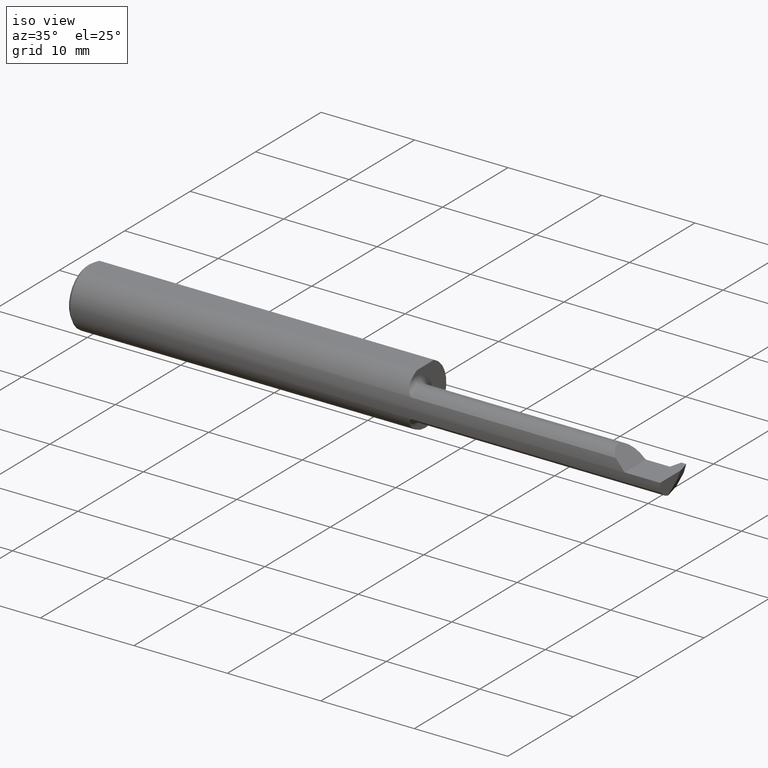
[diagram: clean part render]
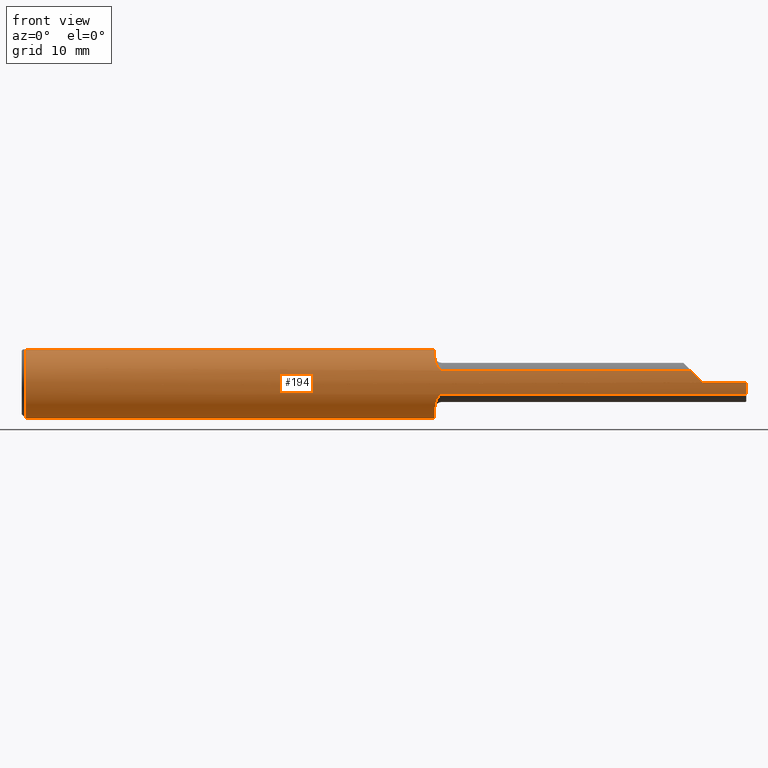
[diagram: tour spotlight — one face highlighted and labeled with its STEP entity id]
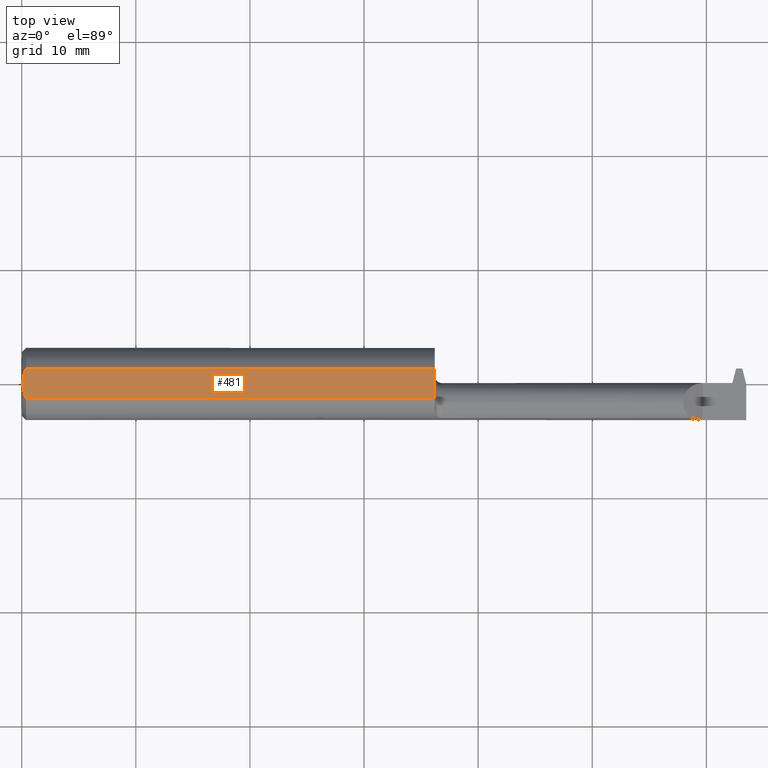
[diagram: tour spotlight — one face highlighted and labeled with its STEP entity id]
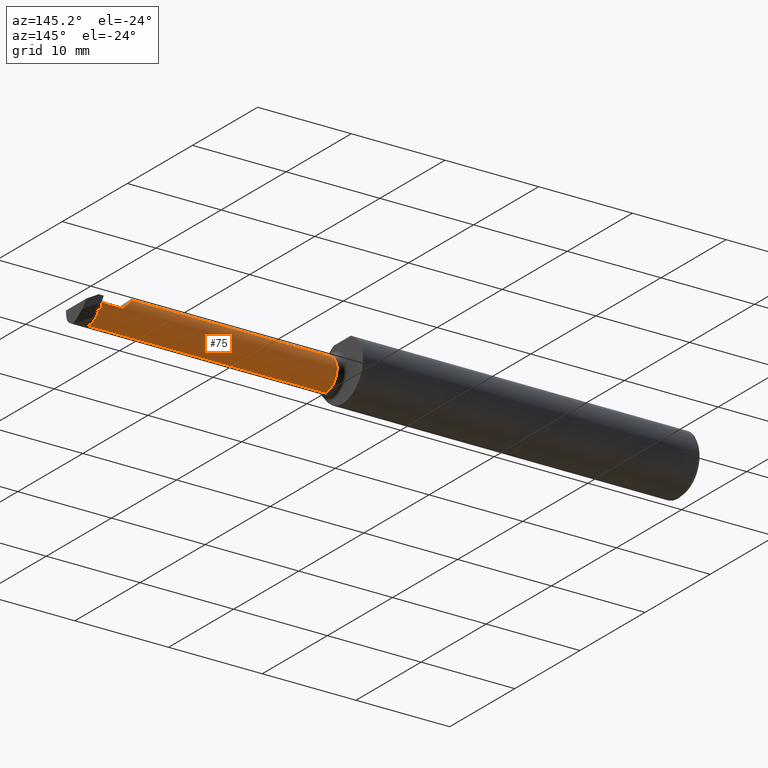
[diagram: tour spotlight — one face highlighted and labeled with its STEP entity id]
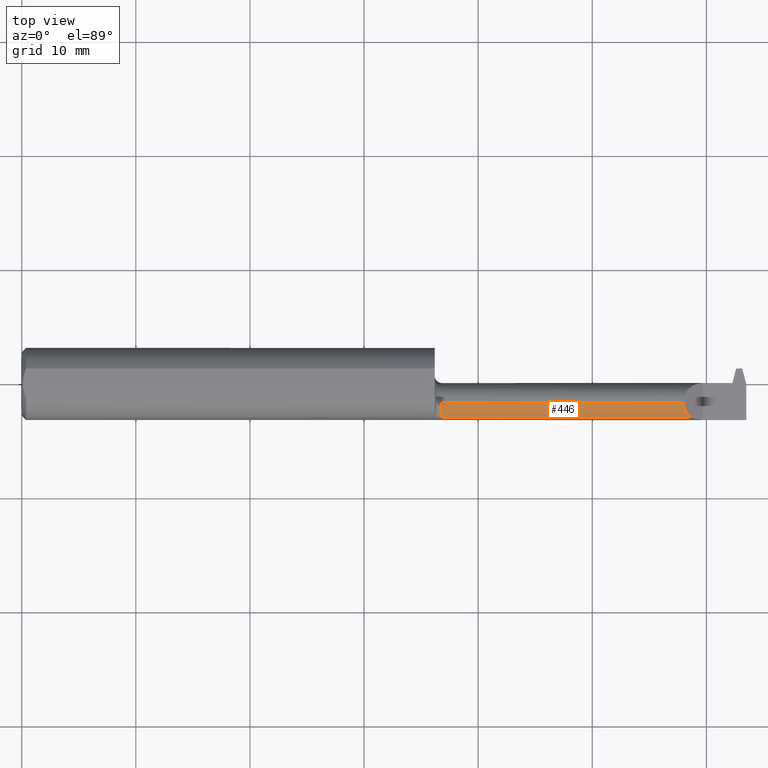
[diagram: tour spotlight — one face highlighted and labeled with its STEP entity id]
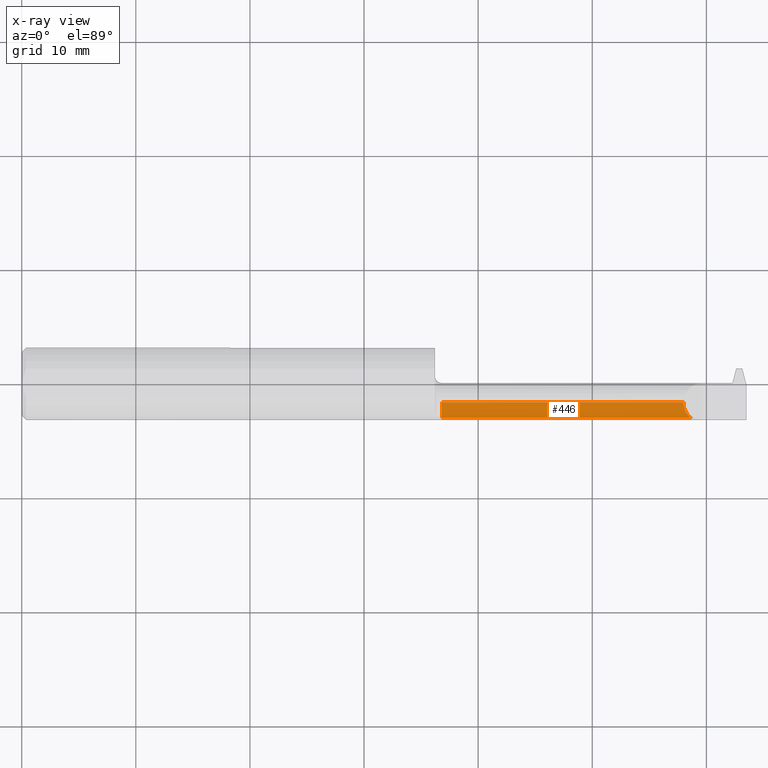
[diagram: x-ray of the same camera — body ghosted, this tour face saturated]
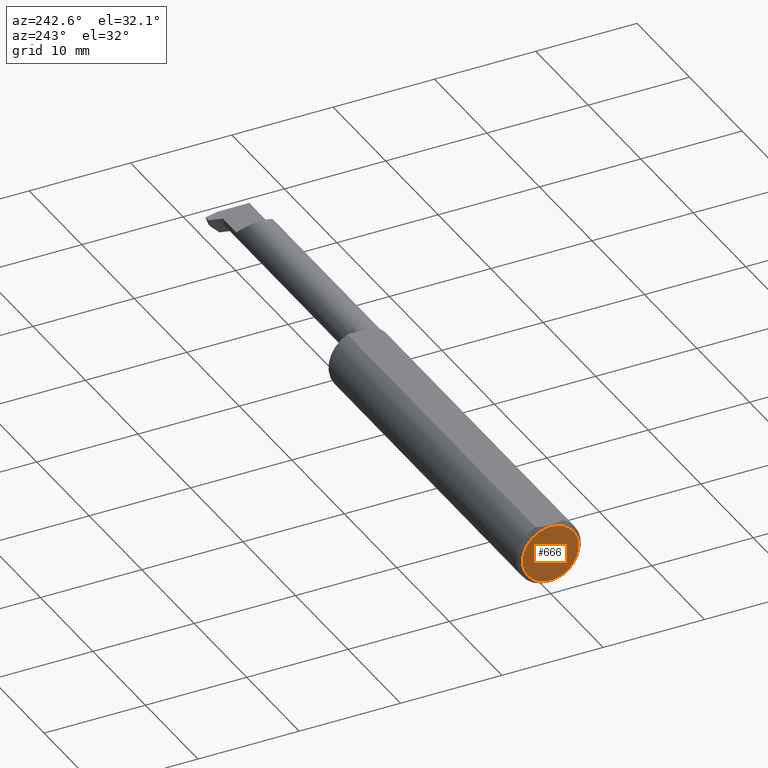
[diagram: tour spotlight — one face highlighted and labeled with its STEP entity id]
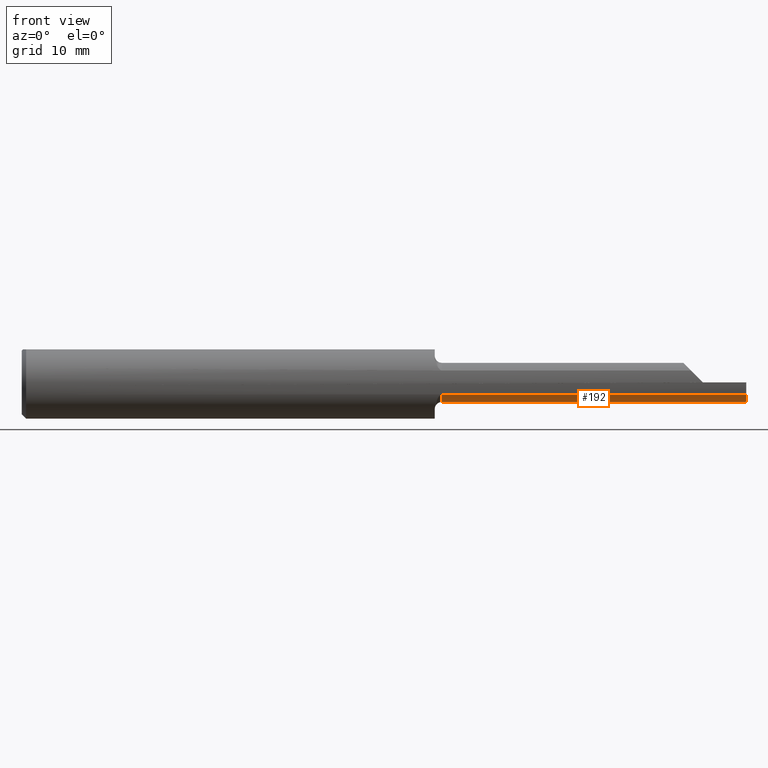
[diagram: tour spotlight — one face highlighted and labeled with its STEP entity id]
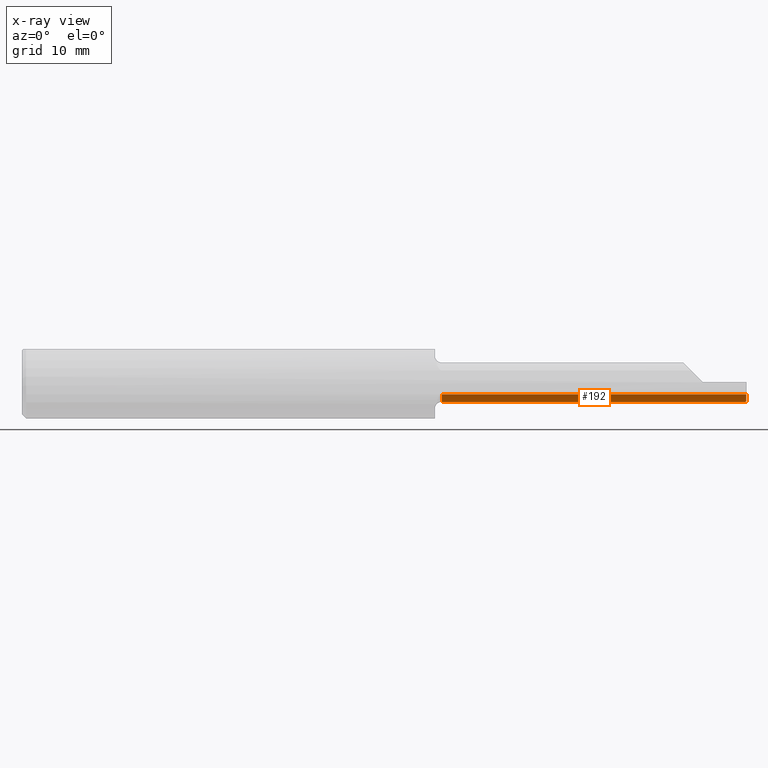
[diagram: x-ray of the same camera — body ghosted, this tour face saturated]
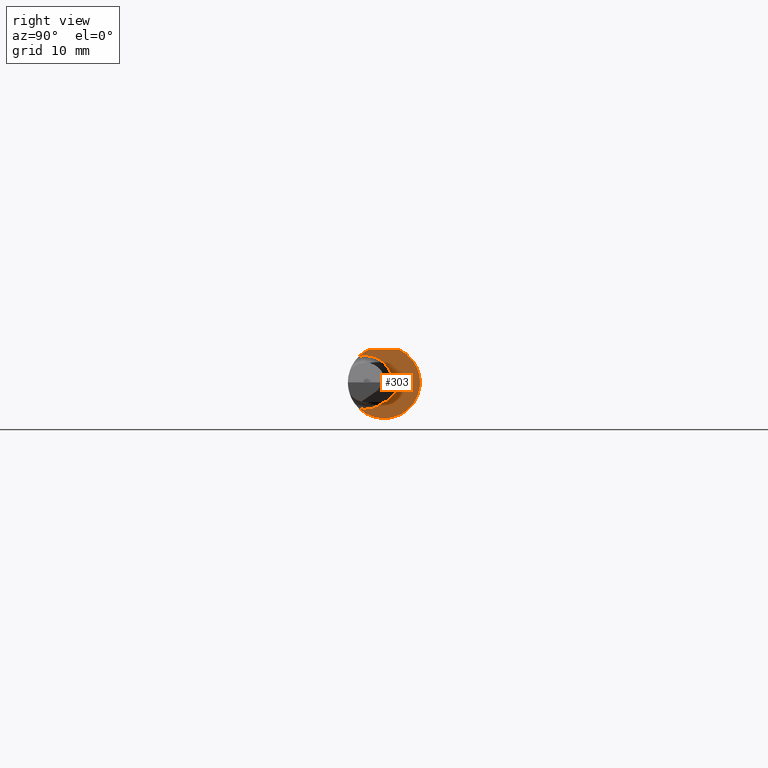
[diagram: tour spotlight — one face highlighted and labeled with its STEP entity id]
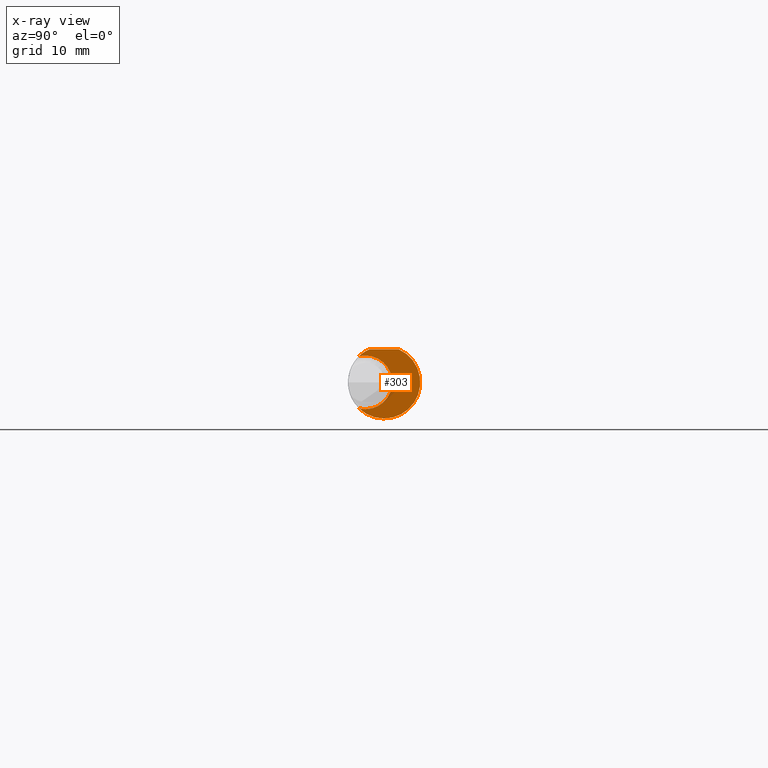
[diagram: x-ray of the same camera — body ghosted, this tour face saturated]
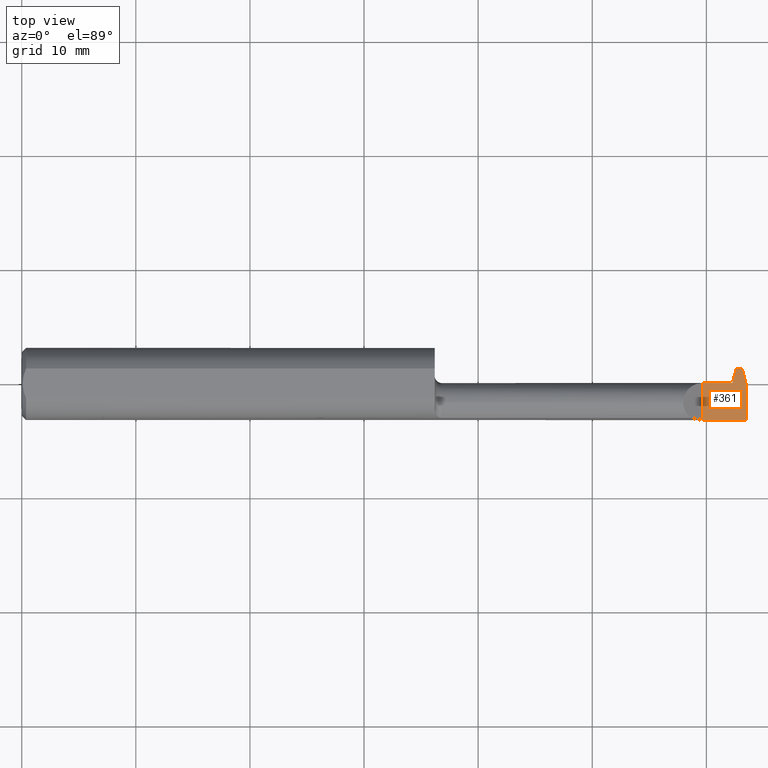
[diagram: tour spotlight — one face highlighted and labeled with its STEP entity id]
A machine part: a face-by-face anatomy tour. The part has 29 B-rep faces; the first image is the clean iso view, then the 8 largest visible faces are spotlighted one at a time (largest first), each with its STEP entity span.

Face 1 — front view, entity #194. In plain terms, the highlighted cylindrical surface (edge-blend (fillet) strip) has radius 3.1712 mm, axis along (-1, -0, -0).
Definition (entity closure, byte-faithful):
#34 = AXIS2_PLACEMENT_3D ( 'NONE', #537, #73, #765 ) ;
#44 = VERTEX_POINT ( 'NONE', #256 ) ;
#62 = B_SPLINE_CURVE_WITH_KNOTS ( 'NONE', 3,
 ( #570, #144, #218, #440, #260, #674, #520, #565, #751, #443, #793, #940 ),
 .UNSPECIFIED., .F., .F.,
 ( 4, 2, 2, 2, 2, 4 ),
 ( 0.000000000000000000, 0.0002139781332481023612, 0.0004279562664962047224, 0.0008559125329924097700, 0.001283868799488614709, 0.001711825065984819974 ),
 .UNSPECIFIED. ) ;
#69 = LINE ( 'NONE', #840, #276 ) ;
#73 = DIRECTION ( 'NONE',  ( -1.000000000000000000, -0.000000000000000000, -0.000000000000000000 ) ) ;
#76 = DIRECTION ( 'NONE',  ( 1.000000000000000000, 0.000000000000000000, 0.000000000000000000 ) ) ;
#77 = CARTESIAN_POINT ( 'NONE',  ( 0.01499999999999970281, 0.05124158467494929065, 0.1138500000000000068 ) ) ;
#87 = LINE ( 'NONE', #622, #811 ) ;
#92 = CARTESIAN_POINT ( 'NONE',  ( 1.428579630862570449, -0.1044777942651883146, -0.06855471305740289123 ) ) ;
#109 = DIRECTION ( 'NONE',  ( 0.000000000000000000, 0.000000000000000000, -1.000000000000000000 ) ) ;
#124 = ORIENTED_EDGE ( 'NONE', *, *, #343, .T. ) ;
#144 = CARTESIAN_POINT ( 'NONE',  ( 1.447138575833329499, -0.1178880730380729991, 0.04110869415792683251 ) ) ;
#152 = EDGE_CURVE ( 'NONE', #268, #44, #62, .T. ) ;
#157 = CARTESIAN_POINT ( 'NONE',  ( 1.425000000000000266, -0.08680804195804191215, -0.08973230383429835200 ) ) ;
#166 = ORIENTED_EDGE ( 'NONE', *, *, #963, .F. ) ;
#170 = CARTESIAN_POINT ( 'NONE',  ( 1.438805720551186385, -0.1151363458569193837, -0.04834088676794719153 ) ) ;
#184 = B_SPLINE_CURVE_WITH_KNOTS ( 'NONE', 3,
 ( #242, #559, #615, #254, #92, #921, #788, #170, #337, #542, #701, #843 ),
 .UNSPECIFIED., .F., .F.,
 ( 4, 2, 2, 2, 2, 4 ),
 ( 0.000000000000000000, 0.0004231261345662541500, 0.0008462522691325083000, 0.001269378403698762396, 0.001480941470981889715, 0.001692504538265017251 ),
 .UNSPECIFIED. ) ;
#185 = CARTESIAN_POINT ( 'NONE',  ( 2.350000000000000089, -0.1248499599519359016, 9.999999999961100661E-05 ) ) ;
#194 = ADVANCED_FACE ( 'NONE', ( #821 ), #422, .T. ) ;
#196 = VERTEX_POINT ( 'NONE', #649 ) ;
#197 = DIRECTION ( 'NONE',  ( 0.000000000000000000, 0.000000000000000000, -1.000000000000000000 ) ) ;
#208 = CARTESIAN_POINT ( 'NONE',  ( 2.350000000000000089, -0.1248499999999999888, -3.367667473011536351E-17 ) ) ;
#211 = EDGE_CURVE ( 'NONE', #804, #308, #985, .T. ) ;
#218 = CARTESIAN_POINT ( 'NONE',  ( 1.444575795023728348, -0.1173638605453972278, 0.04262586039006312916 ) ) ;
#222 = EDGE_CURVE ( 'NONE', #474, #327, #731, .T. ) ;
#223 = DIRECTION ( 'NONE',  ( 0.000000000000000000, 0.000000000000000000, -1.000000000000000000 ) ) ;
#229 = CARTESIAN_POINT ( 'NONE',  ( 2.350000000000000089, -0.1248499599519359016, 9.999999999961100661E-05 ) ) ;
#235 = CARTESIAN_POINT ( 'NONE',  ( 2.500000000000000000, -0.1248499999999999471, -3.367667473011537583E-17 ) ) ;
#241 = VECTOR ( 'NONE', #76, 39.37007874015748143 ) ;
#242 = CARTESIAN_POINT ( 'NONE',  ( 1.425000000000000266, -0.08680804195804191215, -0.08973230383429835200 ) ) ;
#252 = VERTEX_POINT ( 'NONE', #235 ) ;
#254 = CARTESIAN_POINT ( 'NONE',  ( 1.427244443432142962, -0.1013644936721858902, -0.07309500289283984986 ) ) ;
#255 = CIRCLE ( 'NONE', #383, 0.1248500000000000026 ) ;
#256 = CARTESIAN_POINT ( 'NONE',  ( 1.425000000000000266, -0.08680804195804191215, 0.08973230383429835200 ) ) ;
#257 = CIRCLE ( 'NONE', #399, 0.1248500000000000026 ) ;
#260 = CARTESIAN_POINT ( 'NONE',  ( 1.438797751365139321, -0.1151316249329346203, 0.04835186460175136536 ) ) ;
#265 = EDGE_CURVE ( 'NONE', #252, #700, #69, .T. ) ;
#268 = VERTEX_POINT ( 'NONE', #911 ) ;
#276 = VECTOR ( 'NONE', #677, 39.37007874015748143 ) ;
#289 = ORIENTED_EDGE ( 'NONE', *, *, #355, .F. ) ;
#297 = LINE ( 'NONE', #611, #241 ) ;
#308 = VERTEX_POINT ( 'NONE', #77 ) ;
#327 = VERTEX_POINT ( 'NONE', #609 ) ;
#335 = AXIS2_PLACEMENT_3D ( 'NONE', #632, #934, #483 ) ;
#337 = CARTESIAN_POINT ( 'NONE',  ( 1.440487603854009313, -0.1159976367288706595, -0.04621409347929126415 ) ) ;
#339 = AXIS2_PLACEMENT_3D ( 'NONE', #418, #802, #866 ) ;
#343 = EDGE_CURVE ( 'NONE', #700, #871, #620, .T. ) ;
#350 = CARTESIAN_POINT ( 'NONE',  ( 2.500000000000000000, -0.05124158467494929065, 0.1138500000000000068 ) ) ;
#355 = EDGE_CURVE ( 'NONE', #787, #556, #257, .T. ) ;
#370 = CIRCLE ( 'NONE', #922, 0.1248500000000000026 ) ;
#376 = CARTESIAN_POINT ( 'NONE',  ( 1.425000000000000266, 0.000000000000000000, 0.000000000000000000 ) ) ;
#383 = AXIS2_PLACEMENT_3D ( 'NONE', #892, #595, #197 ) ;
#393 = ORIENTED_EDGE ( 'NONE', *, *, #937, .T. ) ;
#399 = AXIS2_PLACEMENT_3D ( 'NONE', #376, #982, #915 ) ;
#418 = CARTESIAN_POINT ( 'NONE',  ( 2.500000000000000000, 0.000000000000000000, 0.000000000000000000 ) ) ;
#422 = CYLINDRICAL_SURFACE ( 'NONE', #339, 0.1248500000000000026 ) ;
#427 = ORIENTED_EDGE ( 'NONE', *, *, #862, .T. ) ;
#440 = CARTESIAN_POINT ( 'NONE',  ( 1.440471370292704556, -0.1159916994806585028, 0.04622948612845707850 ) ) ;
#443 = CARTESIAN_POINT ( 'NONE',  ( 1.425472843869164841, -0.09461185655952933371, 0.08164619401006140142 ) ) ;
#457 = CARTESIAN_POINT ( 'NONE',  ( 0.01499999999999970281, 0.000000000000000000, -0.1248500000000000026 ) ) ;
#471 = LINE ( 'NONE', #873, #968 ) ;
#474 = VERTEX_POINT ( 'NONE', #786 ) ;
#483 = DIRECTION ( 'NONE',  ( 0.000000000000000000, 0.000000000000000000, -1.000000000000000000 ) ) ;
#487 = DIRECTION ( 'NONE',  ( 1.000000000000000000, -0.000000000000000000, -0.000000000000000000 ) ) ;
#504 = CARTESIAN_POINT ( 'NONE',  ( 1.450000000000000178, -0.1178880730380729852, -0.04110869415792685333 ) ) ;
#520 = CARTESIAN_POINT ( 'NONE',  ( 1.432148820116563304, -0.1099047179638918265, 0.05947070158462895717 ) ) ;
#523 = CARTESIAN_POINT ( 'NONE',  ( 2.336004490154644841, -0.1248387500886322388, 0.01409550984535482172 ) ) ;
#525 = VECTOR ( 'NONE', #643, 39.37007874015748143 ) ;
#532 = CARTESIAN_POINT ( 'NONE',  ( 2.322206397681024992, -0.1224963014591190363, 0.02789360231897465570 ) ) ;
#537 = CARTESIAN_POINT ( 'NONE',  ( 2.350000000000000089, 0.000000000000000000, 0.000000000000000000 ) ) ;
#542 = CARTESIAN_POINT ( 'NONE',  ( 1.444569448206967976, -0.1173612273236402659, -0.04263257538414207820 ) ) ;
#556 = VERTEX_POINT ( 'NONE', #664 ) ;
#559 = CARTESIAN_POINT ( 'NONE',  ( 1.425000000000000488, -0.09084981605085465373, -0.08582224602856410034 ) ) ;
#565 = CARTESIAN_POINT ( 'NONE',  ( 1.428561661930270343, -0.1044486834845270024, 0.06860236071768735511 ) ) ;
#570 = CARTESIAN_POINT ( 'NONE',  ( 1.450000000000000178, -0.1178880730380729852, 0.04110869415792685333 ) ) ;
#572 = ORIENTED_EDGE ( 'NONE', *, *, #610, .F. ) ;
#583 = DIRECTION ( 'NONE',  ( 1.000000000000000000, 0.000000000000000000, 0.000000000000000000 ) ) ;
#595 = DIRECTION ( 'NONE',  ( 1.000000000000000000, 0.000000000000000000, 0.000000000000000000 ) ) ;
#601 = CIRCLE ( 'NONE', #335, 0.1248500000000000026 ) ;
#609 = CARTESIAN_POINT ( 'NONE',  ( 0.01499999999999969413, -0.05124158467494929065, 0.1138500000000000068 ) ) ;
#610 = EDGE_CURVE ( 'NONE', #474, #44, #255, .T. ) ;
#611 = CARTESIAN_POINT ( 'NONE',  ( 1.937500000000000222, -0.1178880730380729852, 0.04110869415792685333 ) ) ;
#615 = CARTESIAN_POINT ( 'NONE',  ( 1.425463484348167276, -0.09455996579217590403, -0.08170711654871570806 ) ) ;
#619 = EDGE_LOOP ( 'NONE', ( #166, #648, #986, #124, #720, #946, #883, #572, #698, #393, #713, #981, #289, #427 ) ) ;
#620 = CIRCLE ( 'NONE', #34, 0.1248500000000000026 ) ;
#622 = CARTESIAN_POINT ( 'NONE',  ( 1.937500000000000222, -0.1178880730380729852, -0.04110869415792685333 ) ) ;
#632 = CARTESIAN_POINT ( 'NONE',  ( 0.01499999999999970281, 0.000000000000000000, 0.000000000000000000 ) ) ;
#643 = DIRECTION ( 'NONE',  ( -1.000000000000000000, -0.000000000000000000, -0.000000000000000000 ) ) ;
#648 = ORIENTED_EDGE ( 'NONE', *, *, #783, .F. ) ;
#649 = CARTESIAN_POINT ( 'NONE',  ( 2.308991305842072794, -0.1178880730380730268, 0.04110869415792675619 ) ) ;
#664 = CARTESIAN_POINT ( 'NONE',  ( 1.425000000000000266, 0.05124158467494929065, 0.1138500000000000068 ) ) ;
#674 = CARTESIAN_POINT ( 'NONE',  ( 1.434345155916293413, -0.1122401308722703883, 0.05488497975249280458 ) ) ;
#675 = CARTESIAN_POINT ( 'NONE',  ( 2.308991305842072794, -0.1178880730380730268, 0.04110869415792675619 ) ) ;
#677 = DIRECTION ( 'NONE',  ( -1.000000000000000000, -0.000000000000000000, -0.000000000000000000 ) ) ;
#698 = ORIENTED_EDGE ( 'NONE', *, *, #222, .T. ) ;
#700 = VERTEX_POINT ( 'NONE', #208 ) ;
#701 = CARTESIAN_POINT ( 'NONE',  ( 1.447146851094465836, -0.1178880730380730130, -0.04110869415792674925 ) ) ;
#705 = AXIS2_PLACEMENT_3D ( 'NONE', #949, #487, #109 ) ;
#708 = VERTEX_POINT ( 'NONE', #504 ) ;
#709 = EDGE_CURVE ( 'NONE', #871, #196, #916, .T. ) ;
#713 = ORIENTED_EDGE ( 'NONE', *, *, #211, .T. ) ;
#720 = ORIENTED_EDGE ( 'NONE', *, *, #709, .T. ) ;
#731 = LINE ( 'NONE', #350, #525 ) ;
#737 = VERTEX_POINT ( 'NONE', #761 ) ;
#751 = CARTESIAN_POINT ( 'NONE',  ( 1.427257066675623021, -0.1013963922970315401, 0.07304981880275966677 ) ) ;
#752 = EDGE_CURVE ( 'NONE', #268, #196, #297, .T. ) ;
#761 = CARTESIAN_POINT ( 'NONE',  ( 2.500000000000000000, -0.1178880730380729852, -0.04110869415792685333 ) ) ;
#765 = DIRECTION ( 'NONE',  ( 0.000000000000000000, 0.000000000000000000, 1.000000000000000000 ) ) ;
#783 = EDGE_CURVE ( 'NONE', #252, #737, #370, .T. ) ;
#786 = CARTESIAN_POINT ( 'NONE',  ( 1.425000000000000266, -0.05124158467494927677, 0.1138500000000000068 ) ) ;
#787 = VERTEX_POINT ( 'NONE', #157 ) ;
#788 = CARTESIAN_POINT ( 'NONE',  ( 1.434341522824309489, -0.1122386781385961430, -0.05488888332692708205 ) ) ;
#793 = CARTESIAN_POINT ( 'NONE',  ( 1.425000000000000711, -0.09084801577314524645, 0.08582398763750828663 ) ) ;
#802 = DIRECTION ( 'NONE',  ( -1.000000000000000000, -0.000000000000000000, -0.000000000000000000 ) ) ;
#804 = VERTEX_POINT ( 'NONE', #457 ) ;
#811 = VECTOR ( 'NONE', #928, 39.37007874015748143 ) ;
#821 = FACE_OUTER_BOUND ( 'NONE', #619, .T. ) ;
#840 = CARTESIAN_POINT ( 'NONE',  ( 2.500000000000000000, -0.1248500000000000026, -3.367667473011537583E-17 ) ) ;
#843 = CARTESIAN_POINT ( 'NONE',  ( 1.450000000000000178, -0.1178880730380729852, -0.04110869415792685333 ) ) ;
#862 = EDGE_CURVE ( 'NONE', #787, #708, #184, .T. ) ;
#866 = DIRECTION ( 'NONE',  ( 0.000000000000000000, 0.000000000000000000, 1.000000000000000000 ) ) ;
#871 = VERTEX_POINT ( 'NONE', #185 ) ;
#873 = CARTESIAN_POINT ( 'NONE',  ( 2.500000000000000000, 0.05124158467494929065, 0.1138500000000000068 ) ) ;
#883 = ORIENTED_EDGE ( 'NONE', *, *, #152, .T. ) ;
#892 = CARTESIAN_POINT ( 'NONE',  ( 1.425000000000000266, 0.000000000000000000, 0.000000000000000000 ) ) ;
#903 = CARTESIAN_POINT ( 'NONE',  ( 2.500000000000000000, 0.000000000000000000, 0.000000000000000000 ) ) ;
#911 = CARTESIAN_POINT ( 'NONE',  ( 1.450000000000000178, -0.1178880730380729852, 0.04110869415792685333 ) ) ;
#915 = DIRECTION ( 'NONE',  ( 0.000000000000000000, 0.000000000000000000, -1.000000000000000000 ) ) ;
#916 =( BOUNDED_CURVE ( )  B_SPLINE_CURVE ( 3, ( #229, #523, #532, #675 ),
 .UNSPECIFIED., .F., .T. ) 
 B_SPLINE_CURVE_WITH_KNOTS ( ( 4, 4 ),
 ( 4.713189941623711299, 5.047913695406924361 ),
 .UNSPECIFIED. ) 
 CURVE ( )  GEOMETRIC_REPRESENTATION_ITEM ( )  RATIONAL_B_SPLINE_CURVE ( ( 1.000000000000000000, 0.9906851070496518474, 0.9906851070496518474, 1.000000000000000000 ) ) 
 REPRESENTATION_ITEM ( '' )  );
#921 = CARTESIAN_POINT ( 'NONE',  ( 1.432139659934243969, -0.1098890007994705875, -0.05949592994647465855 ) ) ;
#922 = AXIS2_PLACEMENT_3D ( 'NONE', #903, #976, #223 ) ;
#928 = DIRECTION ( 'NONE',  ( -1.000000000000000000, -0.000000000000000000, -0.000000000000000000 ) ) ;
#934 = DIRECTION ( 'NONE',  ( 1.000000000000000000, -0.000000000000000000, -0.000000000000000000 ) ) ;
#937 = EDGE_CURVE ( 'NONE', #327, #804, #601, .T. ) ;
#940 = CARTESIAN_POINT ( 'NONE',  ( 1.425000000000000266, -0.08680804195804191215, 0.08973230383429835200 ) ) ;
#946 = ORIENTED_EDGE ( 'NONE', *, *, #752, .F. ) ;
#949 = CARTESIAN_POINT ( 'NONE',  ( 0.01499999999999970281, 0.000000000000000000, 0.000000000000000000 ) ) ;
#963 = EDGE_CURVE ( 'NONE', #737, #708, #87, .T. ) ;
#968 = VECTOR ( 'NONE', #583, 39.37007874015748143 ) ;
#976 = DIRECTION ( 'NONE',  ( 1.000000000000000000, 0.000000000000000000, 0.000000000000000000 ) ) ;
#977 = EDGE_CURVE ( 'NONE', #308, #556, #471, .T. ) ;
#981 = ORIENTED_EDGE ( 'NONE', *, *, #977, .T. ) ;
#982 = DIRECTION ( 'NONE',  ( 1.000000000000000000, 0.000000000000000000, 0.000000000000000000 ) ) ;
#985 = CIRCLE ( 'NONE', #705, 0.1248500000000000026 ) ;
#986 = ORIENTED_EDGE ( 'NONE', *, *, #265, .T. ) ;

Face 2 — top view, entity #481. In plain terms, the highlighted planar face has unit normal (-0, 0, -1).
Definition (entity closure, byte-faithful):
#10 = ORIENTED_EDGE ( 'NONE', *, *, #900, .F. ) ;
#15 = CARTESIAN_POINT ( 'NONE',  ( 0.003999999999982594735, -1.276290005483319770E-15, 0.1138500000000000068 ) ) ;
#77 = CARTESIAN_POINT ( 'NONE',  ( 0.01499999999999970281, 0.05124158467494929065, 0.1138500000000000068 ) ) ;
#83 = CARTESIAN_POINT ( 'NONE',  ( 0.003999999999999733803, 0.008800694614867364887, 0.1138500000000000068 ) ) ;
#84 = ORIENTED_EDGE ( 'NONE', *, *, #977, .F. ) ;
#99 = DIRECTION ( 'NONE',  ( 0.000000000000000000, -1.000000000000000000, 0.000000000000000000 ) ) ;
#102 = CARTESIAN_POINT ( 'NONE',  ( 0.005080301127456087092, -0.01778481300359936387, 0.1138500000000000206 ) ) ;
#148 = CARTESIAN_POINT ( 'NONE',  ( 0.005030588787081553478, 0.01748826716933455164, 0.1138499999999999790 ) ) ;
#164 = CARTESIAN_POINT ( 'NONE',  ( 0.01499999999999970281, 0.05124158467494929065, 0.1138500000000000068 ) ) ;
#191 = CARTESIAN_POINT ( 'NONE',  ( 0.003999999999982594735, -1.276290005483319770E-15, 0.1138500000000000068 ) ) ;
#222 = EDGE_CURVE ( 'NONE', #474, #327, #731, .T. ) ;
#237 = CARTESIAN_POINT ( 'NONE',  ( 0.01167190377471843954, 0.04313268608482607319, 0.1138500000000000068 ) ) ;
#246 = ORIENTED_EDGE ( 'NONE', *, *, #429, .T. ) ;
#258 = FACE_OUTER_BOUND ( 'NONE', #284, .T. ) ;
#284 = EDGE_LOOP ( 'NONE', ( #10, #84, #926, #246, #660 ) ) ;
#308 = VERTEX_POINT ( 'NONE', #77 ) ;
#327 = VERTEX_POINT ( 'NONE', #609 ) ;
#330 = CARTESIAN_POINT ( 'NONE',  ( 0.008925039223039965899, -0.03485448893270377130, 0.1138499999999999790 ) ) ;
#350 = CARTESIAN_POINT ( 'NONE',  ( 2.500000000000000000, -0.05124158467494929065, 0.1138500000000000068 ) ) ;
#407 = PLANE ( 'NONE',  #513 ) ;
#429 = EDGE_CURVE ( 'NONE', #502, #327, #450, .T. ) ;
#450 = B_SPLINE_CURVE_WITH_KNOTS ( 'NONE', 3,
 ( #191, #865, #102, #330, #727, #851 ),
 .UNSPECIFIED., .F., .F.,
 ( 4, 2, 4 ),
 ( 0.002543458196361374386, 0.003213918189955199643, 0.003884378183549024900 ),
 .UNSPECIFIED. ) ;
#463 = CARTESIAN_POINT ( 'NONE',  ( 0.008866562462787448695, 0.03466860267591459488, 0.1138500000000000206 ) ) ;
#471 = LINE ( 'NONE', #873, #968 ) ;
#474 = VERTEX_POINT ( 'NONE', #786 ) ;
#481 = ADVANCED_FACE ( 'NONE', ( #258 ), #407, .F. ) ;
#502 = VERTEX_POINT ( 'NONE', #15 ) ;
#513 = AXIS2_PLACEMENT_3D ( 'NONE', #562, #625, #703 ) ;
#525 = VECTOR ( 'NONE', #643, 39.37007874015748143 ) ;
#556 = VERTEX_POINT ( 'NONE', #664 ) ;
#562 = CARTESIAN_POINT ( 'NONE',  ( 0.000000000000000000, 0.1000000000000000056, 0.1138500000000000068 ) ) ;
#583 = DIRECTION ( 'NONE',  ( 1.000000000000000000, 0.000000000000000000, 0.000000000000000000 ) ) ;
#587 = B_SPLINE_CURVE_WITH_KNOTS ( 'NONE', 3,
 ( #164, #237, #463, #148, #83, #680 ),
 .UNSPECIFIED., .F., .F.,
 ( 4, 2, 4 ),
 ( 0.001209797888329797611, 0.001876628042345585999, 0.002543458196361374386 ),
 .UNSPECIFIED. ) ;
#609 = CARTESIAN_POINT ( 'NONE',  ( 0.01499999999999969413, -0.05124158467494929065, 0.1138500000000000068 ) ) ;
#625 = DIRECTION ( 'NONE',  ( -0.000000000000000000, 0.000000000000000000, -1.000000000000000000 ) ) ;
#643 = DIRECTION ( 'NONE',  ( -1.000000000000000000, -0.000000000000000000, -0.000000000000000000 ) ) ;
#660 = ORIENTED_EDGE ( 'NONE', *, *, #222, .F. ) ;
#664 = CARTESIAN_POINT ( 'NONE',  ( 1.425000000000000266, 0.05124158467494929065, 0.1138500000000000068 ) ) ;
#680 = CARTESIAN_POINT ( 'NONE',  ( 0.003999999999982594735, -1.276290005483319770E-15, 0.1138500000000000068 ) ) ;
#703 = DIRECTION ( 'NONE',  ( -1.000000000000000000, 0.000000000000000000, 0.000000000000000000 ) ) ;
#727 = CARTESIAN_POINT ( 'NONE',  ( 0.01167347033176715718, -0.04313650299737421812, 0.1138500000000000068 ) ) ;
#731 = LINE ( 'NONE', #350, #525 ) ;
#786 = CARTESIAN_POINT ( 'NONE',  ( 1.425000000000000266, -0.05124158467494927677, 0.1138500000000000068 ) ) ;
#794 = LINE ( 'NONE', #931, #970 ) ;
#822 = EDGE_CURVE ( 'NONE', #308, #502, #587, .T. ) ;
#851 = CARTESIAN_POINT ( 'NONE',  ( 0.01499999999999969413, -0.05124158467494929065, 0.1138500000000000068 ) ) ;
#865 = CARTESIAN_POINT ( 'NONE',  ( 0.004000000000000225597, -0.008848600531297691474, 0.1138500000000000068 ) ) ;
#873 = CARTESIAN_POINT ( 'NONE',  ( 2.500000000000000000, 0.05124158467494929065, 0.1138500000000000068 ) ) ;
#900 = EDGE_CURVE ( 'NONE', #556, #474, #794, .T. ) ;
#926 = ORIENTED_EDGE ( 'NONE', *, *, #822, .T. ) ;
#931 = CARTESIAN_POINT ( 'NONE',  ( 1.425000000000000266, 0.1000000000000000056, 0.1138500000000000068 ) ) ;
#968 = VECTOR ( 'NONE', #583, 39.37007874015748143 ) ;
#970 = VECTOR ( 'NONE', #99, 39.37007874015748143 ) ;
#977 = EDGE_CURVE ( 'NONE', #308, #556, #471, .T. ) ;

Face 3 — auxiliary view, entity #75. In plain terms, the highlighted cylindrical surface (edge-blend (fillet) strip) has radius 1.7145 mm, axis along (-1, -0, -0).
Definition (entity closure, byte-faithful):
#8 = EDGE_CURVE ( 'NONE', #718, #777, #657, .T. ) ;
#14 = VERTEX_POINT ( 'NONE', #329 ) ;
#16 = CIRCLE ( 'NONE', #580, 0.06750000000000001832 ) ;
#21 = EDGE_CURVE ( 'NONE', #362, #149, #633, .T. ) ;
#30 = VECTOR ( 'NONE', #849, 39.37007874015748143 ) ;
#31 = CIRCLE ( 'NONE', #591, 0.06750000000000001832 ) ;
#40 = CARTESIAN_POINT ( 'NONE',  ( 2.350000000000000089, 0.003149925925885245243, 9.999999999961100661E-05 ) ) ;
#42 = ORIENTED_EDGE ( 'NONE', *, *, #129, .T. ) ;
#51 = VECTOR ( 'NONE', #186, 39.37007874015748143 ) ;
#59 = CARTESIAN_POINT ( 'NONE',  ( 1.425000000000000266, -0.06435000000000003217, 0.06750000000000001832 ) ) ;
#65 = CARTESIAN_POINT ( 'NONE',  ( 2.310505889776659494, 0.003091416068753647349, 0.03959411022334007740 ) ) ;
#66 = VECTOR ( 'NONE', #607, 39.37007874015748143 ) ;
#68 = CARTESIAN_POINT ( 'NONE',  ( 2.446947195464070024, -0.004283243744551786490, -0.03079342126085652526 ) ) ;
#72 = ORIENTED_EDGE ( 'NONE', *, *, #679, .T. ) ;
#75 = ADVANCED_FACE ( 'NONE', ( #282 ), #435, .T. ) ;
#91 = EDGE_CURVE ( 'NONE', #957, #149, #819, .T. ) ;
#97 = EDGE_CURVE ( 'NONE', #842, #14, #16, .T. ) ;
#101 = EDGE_CURVE ( 'NONE', #792, #14, #134, .T. ) ;
#103 = ORIENTED_EDGE ( 'NONE', *, *, #97, .T. ) ;
#115 = AXIS2_PLACEMENT_3D ( 'NONE', #826, #965, #745 ) ;
#119 = EDGE_CURVE ( 'NONE', #584, #718, #526, .T. ) ;
#125 = DIRECTION ( 'NONE',  ( -1.000000000000000000, -0.000000000000000000, -0.000000000000000000 ) ) ;
#128 = CARTESIAN_POINT ( 'NONE',  ( 2.436366871395940326, -0.002552249386265832611, -0.02715304806246835595 ) ) ;
#129 = EDGE_CURVE ( 'NONE', #777, #424, #227, .T. ) ;
#132 = VECTOR ( 'NONE', #207, 39.37007874015748143 ) ;
#134 = LINE ( 'NONE', #59, #147 ) ;
#143 = CARTESIAN_POINT ( 'NONE',  ( 2.282599999999999962, -0.06435000000000003217, 0.06750000000000001832 ) ) ;
#145 = EDGE_CURVE ( 'NONE', #770, #792, #958, .T. ) ;
#147 = VECTOR ( 'NONE', #364, 39.37007874015748143 ) ;
#149 = VERTEX_POINT ( 'NONE', #498 ) ;
#155 = DIRECTION ( 'NONE',  ( 1.000000000000000000, 0.000000000000000000, 0.000000000000000000 ) ) ;
#160 = CARTESIAN_POINT ( 'NONE',  ( 2.350000000000000089, 0.003149999999999971833, -3.367667473011536351E-17 ) ) ;
#163 = VECTOR ( 'NONE', #712, 39.37007874015748143 ) ;
#177 = ORIENTED_EDGE ( 'NONE', *, *, #101, .F. ) ;
#186 = DIRECTION ( 'NONE',  ( 1.000000000000000000, 0.000000000000000000, 0.000000000000000000 ) ) ;
#207 = DIRECTION ( 'NONE',  ( -1.000000000000000000, -0.000000000000000000, -0.000000000000000000 ) ) ;
#227 = CIRCLE ( 'NONE', #115, 0.06750000000000001832 ) ;
#231 = CARTESIAN_POINT ( 'NONE',  ( 1.425000000000000266, -0.06435000000000003217, 0.000000000000000000 ) ) ;
#247 = LINE ( 'NONE', #547, #30 ) ;
#273 = AXIS2_PLACEMENT_3D ( 'NONE', #805, #125, #425 ) ;
#279 = DIRECTION ( 'NONE',  ( 0.000000000000000000, 0.000000000000000000, 1.000000000000000000 ) ) ;
#282 = FACE_OUTER_BOUND ( 'NONE', #653, .T. ) ;
#299 = CARTESIAN_POINT ( 'NONE',  ( 2.450000000000000178, -0.004283243744551730979, -0.03079342126085642811 ) ) ;
#304 = LINE ( 'NONE', #693, #66 ) ;
#316 = CARTESIAN_POINT ( 'NONE',  ( 2.436366871395940326, -0.002552249386265832611, -0.02715304806246835595 ) ) ;
#329 = CARTESIAN_POINT ( 'NONE',  ( 1.450000000000000178, -0.06435000000000003217, 0.06750000000000001832 ) ) ;
#348 = DIRECTION ( 'NONE',  ( -1.000000000000000000, -0.000000000000000000, -0.000000000000000000 ) ) ;
#362 = VERTEX_POINT ( 'NONE', #160 ) ;
#364 = DIRECTION ( 'NONE',  ( -1.000000000000000000, -0.000000000000000000, -0.000000000000000000 ) ) ;
#372 = CARTESIAN_POINT ( 'NONE',  ( 1.450000000000000178, -0.06435000000000003217, -0.06750000000000001832 ) ) ;
#413 = CARTESIAN_POINT ( 'NONE',  ( 2.282599999999999962, -0.02485584643600085783, 0.06749999999999999056 ) ) ;
#424 = VERTEX_POINT ( 'NONE', #773 ) ;
#425 = DIRECTION ( 'NONE',  ( 0.000000000000000000, 0.000000000000000000, 1.000000000000000000 ) ) ;
#435 = CYLINDRICAL_SURFACE ( 'NONE', #861, 0.06750000000000001832 ) ;
#439 = ORIENTED_EDGE ( 'NONE', *, *, #8, .T. ) ;
#444 = AXIS2_PLACEMENT_3D ( 'NONE', #830, #508, #813 ) ;
#498 = CARTESIAN_POINT ( 'NONE',  ( 2.442069120782206060, 0.003149999999999970966, 0.000000000000000000 ) ) ;
#508 = DIRECTION ( 'NONE',  ( -1.000000000000000000, -0.000000000000000000, -0.000000000000000000 ) ) ;
#517 = CARTESIAN_POINT ( 'NONE',  ( 1.450000000000000178, -0.06435000000000003217, 0.000000000000000000 ) ) ;
#526 = CIRCLE ( 'NONE', #444, 0.06750000000000001832 ) ;
#528 = CARTESIAN_POINT ( 'NONE',  ( 2.350000000000000089, 0.003149925925885245243, 9.999999999961100661E-05 ) ) ;
#533 = ORIENTED_EDGE ( 'NONE', *, *, #869, .T. ) ;
#536 = VERTEX_POINT ( 'NONE', #943 ) ;
#543 = VERTEX_POINT ( 'NONE', #870 ) ;
#547 = CARTESIAN_POINT ( 'NONE',  ( 1.425000000000000266, -0.002552249386266026467, -0.02715304806246876881 ) ) ;
#580 = AXIS2_PLACEMENT_3D ( 'NONE', #517, #155, #896 ) ;
#582 = ORIENTED_EDGE ( 'NONE', *, *, #647, .T. ) ;
#584 = VERTEX_POINT ( 'NONE', #973 ) ;
#591 = AXIS2_PLACEMENT_3D ( 'NONE', #816, #348, #279 ) ;
#606 = CARTESIAN_POINT ( 'NONE',  ( 2.438170679457906775, 0.001221809097012113753, -0.01856365049595230798 ) ) ;
#607 = DIRECTION ( 'NONE',  ( 1.000000000000000000, 0.000000000000000000, 0.000000000000000000 ) ) ;
#627 = CARTESIAN_POINT ( 'NONE',  ( 1.425000000000000266, -0.06435000000000003217, -0.06750000000000001832 ) ) ;
#628 = ORIENTED_EDGE ( 'NONE', *, *, #119, .T. ) ;
#633 = LINE ( 'NONE', #795, #51 ) ;
#637 = CARTESIAN_POINT ( 'NONE',  ( 2.282599999999999962, -0.06435000000000003217, 0.06750000000000001832 ) ) ;
#640 = ORIENTED_EDGE ( 'NONE', *, *, #145, .F. ) ;
#647 = EDGE_CURVE ( 'NONE', #536, #543, #31, .T. ) ;
#653 = EDGE_LOOP ( 'NONE', ( #582, #533, #103, #177, #640, #72, #950, #764, #685, #628, #439, #42, #846 ) ) ;
#657 = LINE ( 'NONE', #887, #132 ) ;
#663 = DIRECTION ( 'NONE',  ( -1.000000000000000000, -0.000000000000000000, -0.000000000000000000 ) ) ;
#679 = EDGE_CURVE ( 'NONE', #770, #362, #721, .T. ) ;
#685 = ORIENTED_EDGE ( 'NONE', *, *, #971, .F. ) ;
#693 = CARTESIAN_POINT ( 'NONE',  ( 1.425000000000000266, -0.05595768985601794199, -0.06697625796091639938 ) ) ;
#707 = LINE ( 'NONE', #627, #163 ) ;
#712 = DIRECTION ( 'NONE',  ( -1.000000000000000000, -0.000000000000000000, -0.000000000000000000 ) ) ;
#718 = VERTEX_POINT ( 'NONE', #299 ) ;
#721 = CIRCLE ( 'NONE', #273, 0.06750000000000001832 ) ;
#733 = EDGE_CURVE ( 'NONE', #424, #536, #304, .T. ) ;
#745 = DIRECTION ( 'NONE',  ( 0.000000000000000000, 1.770642218115725568E-15, -1.000000000000000000 ) ) ;
#764 = ORIENTED_EDGE ( 'NONE', *, *, #91, .F. ) ;
#770 = VERTEX_POINT ( 'NONE', #528 ) ;
#773 = CARTESIAN_POINT ( 'NONE',  ( 2.446947195464070024, -0.05595768985601794199, -0.06697625796091639938 ) ) ;
#777 = VERTEX_POINT ( 'NONE', #68 ) ;
#792 = VERTEX_POINT ( 'NONE', #143 ) ;
#795 = CARTESIAN_POINT ( 'NONE',  ( 1.425000000000000266, 0.003149999999999980507, -3.367667473011537583E-17 ) ) ;
#805 = CARTESIAN_POINT ( 'NONE',  ( 2.350000000000000089, -0.06435000000000003217, 0.000000000000000000 ) ) ;
#813 = DIRECTION ( 'NONE',  ( 0.000000000000000000, 0.000000000000000000, 1.000000000000000000 ) ) ;
#816 = CARTESIAN_POINT ( 'NONE',  ( 2.450000000000000178, -0.06435000000000003217, 0.000000000000000000 ) ) ;
#819 =( BOUNDED_CURVE ( )  B_SPLINE_CURVE ( 3, ( #128, #606, #891, #912 ),
 .UNSPECIFIED., .F., .T. ) 
 B_SPLINE_CURVE_WITH_KNOTS ( ( 4, 4 ),
 ( 1.156804228221840036, 1.570796326794896780 ),
 .UNSPECIFIED. ) 
 CURVE ( )  GEOMETRIC_REPRESENTATION_ITEM ( )  RATIONAL_B_SPLINE_CURVE ( ( 1.000000000000000000, 0.9857684695413670983, 0.9857684695413670983, 1.000000000000000000 ) ) 
 REPRESENTATION_ITEM ( '' )  );
#826 = CARTESIAN_POINT ( 'NONE',  ( 2.446947195464070024, -0.06435000000000003217, 0.000000000000000000 ) ) ;
#830 = CARTESIAN_POINT ( 'NONE',  ( 2.450000000000000178, -0.06435000000000003217, 0.000000000000000000 ) ) ;
#842 = VERTEX_POINT ( 'NONE', #372 ) ;
#846 = ORIENTED_EDGE ( 'NONE', *, *, #733, .T. ) ;
#849 = DIRECTION ( 'NONE',  ( -1.000000000000000000, -0.000000000000000000, -0.000000000000000000 ) ) ;
#861 = AXIS2_PLACEMENT_3D ( 'NONE', #231, #663, #983 ) ;
#869 = EDGE_CURVE ( 'NONE', #543, #842, #707, .T. ) ;
#870 = CARTESIAN_POINT ( 'NONE',  ( 2.450000000000000178, -0.06435000000000004605, -0.06750000000000001832 ) ) ;
#887 = CARTESIAN_POINT ( 'NONE',  ( 1.425000000000000266, -0.004283243744551786490, -0.03079342126085652526 ) ) ;
#891 = CARTESIAN_POINT ( 'NONE',  ( 2.440098870360894789, 0.003149999999999981374, -0.009381965038885694066 ) ) ;
#896 = DIRECTION ( 'NONE',  ( 0.000000000000000000, 0.000000000000000000, -1.000000000000000000 ) ) ;
#912 = CARTESIAN_POINT ( 'NONE',  ( 2.442069120782206060, 0.003149999999999970966, 0.000000000000000000 ) ) ;
#943 = CARTESIAN_POINT ( 'NONE',  ( 2.450000000000000178, -0.05595768985601804607, -0.06697625796091642714 ) ) ;
#950 = ORIENTED_EDGE ( 'NONE', *, *, #21, .T. ) ;
#957 = VERTEX_POINT ( 'NONE', #316 ) ;
#958 =( BOUNDED_CURVE ( )  B_SPLINE_CURVE ( 3, ( #40, #65, #413, #637 ),
 .UNSPECIFIED., .F., .T. ) 
 B_SPLINE_CURVE_WITH_KNOTS ( ( 4, 4 ),
 ( 4.713870462408088713, 6.283185307179586232 ),
 .UNSPECIFIED. ) 
 CURVE ( )  GEOMETRIC_REPRESENTATION_ITEM ( )  RATIONAL_B_SPLINE_CURVE ( ( 1.000000000000000000, 0.8050869134249070136, 0.8050869134249070136, 1.000000000000000000 ) ) 
 REPRESENTATION_ITEM ( '' )  );
#965 = DIRECTION ( 'NONE',  ( -1.000000000000000000, -0.000000000000000000, -0.000000000000000000 ) ) ;
#971 = EDGE_CURVE ( 'NONE', #584, #957, #247, .T. ) ;
#973 = CARTESIAN_POINT ( 'NONE',  ( 2.450000000000000178, -0.002552249386265836081, -0.02715304806246837330 ) ) ;
#983 = DIRECTION ( 'NONE',  ( 0.000000000000000000, 0.000000000000000000, 1.000000000000000000 ) ) ;

Face 4 — top view, entity #446. An x-ray twin of the same camera follows (body ghosted, this face saturated) — the face is partly hidden behind the body. In plain terms, the highlighted cylindrical surface (edge-blend (fillet) strip) has radius 1.7145 mm, axis along (-1, -0, -0).
Definition (entity closure, byte-faithful):
#14 = VERTEX_POINT ( 'NONE', #329 ) ;
#17 = ORIENTED_EDGE ( 'NONE', *, *, #101, .T. ) ;
#18 = CARTESIAN_POINT ( 'NONE',  ( 2.308991305842072794, -0.1178880730380730268, 0.04110869415792675619 ) ) ;
#59 = CARTESIAN_POINT ( 'NONE',  ( 1.425000000000000266, -0.06435000000000003217, 0.06750000000000001832 ) ) ;
#76 = DIRECTION ( 'NONE',  ( 1.000000000000000000, 0.000000000000000000, 0.000000000000000000 ) ) ;
#101 = EDGE_CURVE ( 'NONE', #792, #14, #134, .T. ) ;
#134 = LINE ( 'NONE', #59, #147 ) ;
#141 =( BOUNDED_CURVE ( )  B_SPLINE_CURVE ( 3, ( #404, #639, #771, #18 ),
 .UNSPECIFIED., .F., .T. ) 
 B_SPLINE_CURVE_WITH_KNOTS ( ( 4, 4 ),
 ( 0.000000000000000000, 0.9159748057925681808 ),
 .UNSPECIFIED. ) 
 CURVE ( )  GEOMETRIC_REPRESENTATION_ITEM ( )  RATIONAL_B_SPLINE_CURVE ( ( 1.000000000000000000, 0.9312961138972046804, 0.9312961138972046804, 1.000000000000000000 ) ) 
 REPRESENTATION_ITEM ( '' )  );
#143 = CARTESIAN_POINT ( 'NONE',  ( 2.282599999999999962, -0.06435000000000003217, 0.06750000000000001832 ) ) ;
#147 = VECTOR ( 'NONE', #364, 39.37007874015748143 ) ;
#181 = DIRECTION ( 'NONE',  ( 0.000000000000000000, 0.000000000000000000, 1.000000000000000000 ) ) ;
#196 = VERTEX_POINT ( 'NONE', #649 ) ;
#241 = VECTOR ( 'NONE', #76, 39.37007874015748143 ) ;
#266 = EDGE_LOOP ( 'NONE', ( #408, #17, #612, #806 ) ) ;
#268 = VERTEX_POINT ( 'NONE', #911 ) ;
#297 = LINE ( 'NONE', #611, #241 ) ;
#311 = DIRECTION ( 'NONE',  ( 0.000000000000000000, 0.000000000000000000, -1.000000000000000000 ) ) ;
#329 = CARTESIAN_POINT ( 'NONE',  ( 1.450000000000000178, -0.06435000000000003217, 0.06750000000000001832 ) ) ;
#364 = DIRECTION ( 'NONE',  ( -1.000000000000000000, -0.000000000000000000, -0.000000000000000000 ) ) ;
#384 = AXIS2_PLACEMENT_3D ( 'NONE', #396, #634, #181 ) ;
#390 = DIRECTION ( 'NONE',  ( 1.000000000000000000, 0.000000000000000000, 0.000000000000000000 ) ) ;
#396 = CARTESIAN_POINT ( 'NONE',  ( 1.425000000000000266, -0.06435000000000003217, 0.000000000000000000 ) ) ;
#404 = CARTESIAN_POINT ( 'NONE',  ( 2.282599999999999962, -0.06435000000000003217, 0.06750000000000001832 ) ) ;
#408 = ORIENTED_EDGE ( 'NONE', *, *, #898, .F. ) ;
#446 = ADVANCED_FACE ( 'NONE', ( #875 ), #719, .T. ) ;
#611 = CARTESIAN_POINT ( 'NONE',  ( 1.937500000000000222, -0.1178880730380729852, 0.04110869415792685333 ) ) ;
#612 = ORIENTED_EDGE ( 'NONE', *, *, #827, .T. ) ;
#634 = DIRECTION ( 'NONE',  ( -1.000000000000000000, -0.000000000000000000, -0.000000000000000000 ) ) ;
#639 = CARTESIAN_POINT ( 'NONE',  ( 2.282599999999999518, -0.08571428085691458476, 0.06750000000000000444 ) ) ;
#649 = CARTESIAN_POINT ( 'NONE',  ( 2.308991305842072794, -0.1178880730380730268, 0.04110869415792675619 ) ) ;
#719 = CYLINDRICAL_SURFACE ( 'NONE', #384, 0.06750000000000001832 ) ;
#752 = EDGE_CURVE ( 'NONE', #268, #196, #297, .T. ) ;
#753 = CIRCLE ( 'NONE', #878, 0.06750000000000001832 ) ;
#767 = CARTESIAN_POINT ( 'NONE',  ( 1.450000000000000178, -0.06435000000000003217, 0.000000000000000000 ) ) ;
#771 = CARTESIAN_POINT ( 'NONE',  ( 2.292046084672837658, -0.1048768480358367172, 0.05805391532716226016 ) ) ;
#792 = VERTEX_POINT ( 'NONE', #143 ) ;
#806 = ORIENTED_EDGE ( 'NONE', *, *, #752, .T. ) ;
#827 = EDGE_CURVE ( 'NONE', #14, #268, #753, .T. ) ;
#875 = FACE_OUTER_BOUND ( 'NONE', #266, .T. ) ;
#878 = AXIS2_PLACEMENT_3D ( 'NONE', #767, #390, #311 ) ;
#898 = EDGE_CURVE ( 'NONE', #792, #196, #141, .T. ) ;
#911 = CARTESIAN_POINT ( 'NONE',  ( 1.450000000000000178, -0.1178880730380729852, 0.04110869415792685333 ) ) ;

Face 5 — auxiliary view, entity #666. In plain terms, the highlighted planar face has unit normal (1, 0, 0).
Definition (entity closure, byte-faithful):
#1 = AXIS2_PLACEMENT_3D ( 'NONE', #503, #405, #24 ) ;
#12 = EDGE_CURVE ( 'NONE', #111, #259, #479, .T. ) ;
#24 = DIRECTION ( 'NONE',  ( 0.000000000000000000, 0.000000000000000000, -1.000000000000000000 ) ) ;
#36 = CARTESIAN_POINT ( 'NONE',  ( 0.000000000000000000, 0.000000000000000000, 0.000000000000000000 ) ) ;
#53 = CARTESIAN_POINT ( 'NONE',  ( 0.000000000000000000, 0.000000000000000000, -0.1098499999999999199 ) ) ;
#111 = VERTEX_POINT ( 'NONE', #53 ) ;
#121 = EDGE_LOOP ( 'NONE', ( #321, #389 ) ) ;
#167 = CARTESIAN_POINT ( 'NONE',  ( 0.000000000000000000, 1.437123018799418518E-17, 0.1098499999999999199 ) ) ;
#259 = VERTEX_POINT ( 'NONE', #167 ) ;
#274 = DIRECTION ( 'NONE',  ( 0.000000000000000000, 0.000000000000000000, -1.000000000000000000 ) ) ;
#275 = CIRCLE ( 'NONE', #354, 0.1098499999999999199 ) ;
#321 = ORIENTED_EDGE ( 'NONE', *, *, #12, .T. ) ;
#323 = DIRECTION ( 'NONE',  ( -1.000000000000000000, -0.000000000000000000, -0.000000000000000000 ) ) ;
#354 = AXIS2_PLACEMENT_3D ( 'NONE', #36, #323, #784 ) ;
#389 = ORIENTED_EDGE ( 'NONE', *, *, #852, .T. ) ;
#397 = AXIS2_PLACEMENT_3D ( 'NONE', #966, #749, #274 ) ;
#405 = DIRECTION ( 'NONE',  ( -1.000000000000000000, -0.000000000000000000, -0.000000000000000000 ) ) ;
#438 = PLANE ( 'NONE',  #397 ) ;
#479 = CIRCLE ( 'NONE', #1, 0.1098499999999999199 ) ;
#503 = CARTESIAN_POINT ( 'NONE',  ( 0.000000000000000000, 0.000000000000000000, 0.000000000000000000 ) ) ;
#666 = ADVANCED_FACE ( 'NONE', ( #741 ), #438, .F. ) ;
#741 = FACE_OUTER_BOUND ( 'NONE', #121, .T. ) ;
#749 = DIRECTION ( 'NONE',  ( 1.000000000000000000, 0.000000000000000000, 0.000000000000000000 ) ) ;
#784 = DIRECTION ( 'NONE',  ( 0.000000000000000000, 0.000000000000000000, -1.000000000000000000 ) ) ;
#852 = EDGE_CURVE ( 'NONE', #259, #111, #275, .T. ) ;
#966 = CARTESIAN_POINT ( 'NONE',  ( 0.000000000000000000, 0.000000000000000000, 0.000000000000000000 ) ) ;

Face 6 — front view, entity #192. An x-ray twin of the same camera follows (body ghosted, this face saturated) — the face is partly hidden behind the body. In plain terms, the highlighted cylindrical surface (edge-blend (fillet) strip) has radius 1.7145 mm, axis along (-1, -0, -0).
Definition (entity closure, byte-faithful):
#20 = CARTESIAN_POINT ( 'NONE',  ( 1.450000000000000178, -0.06435000000000003217, 0.000000000000000000 ) ) ;
#45 = CYLINDRICAL_SURFACE ( 'NONE', #881, 0.06750000000000001832 ) ;
#86 = ORIENTED_EDGE ( 'NONE', *, *, #635, .T. ) ;
#87 = LINE ( 'NONE', #622, #811 ) ;
#122 = DIRECTION ( 'NONE',  ( 0.000000000000000000, 0.000000000000000000, 1.000000000000000000 ) ) ;
#146 = CIRCLE ( 'NONE', #433, 0.06750000000000001832 ) ;
#159 = EDGE_CURVE ( 'NONE', #737, #214, #146, .T. ) ;
#163 = VECTOR ( 'NONE', #712, 39.37007874015748143 ) ;
#165 = VECTOR ( 'NONE', #824, 39.37007874015748143 ) ;
#182 = EDGE_LOOP ( 'NONE', ( #391, #670, #86, #262, #366, #277 ) ) ;
#192 = ADVANCED_FACE ( 'NONE', ( #296 ), #45, .T. ) ;
#193 = DIRECTION ( 'NONE',  ( 0.000000000000000000, 0.000000000000000000, 1.000000000000000000 ) ) ;
#214 = VERTEX_POINT ( 'NONE', #290 ) ;
#262 = ORIENTED_EDGE ( 'NONE', *, *, #159, .F. ) ;
#263 = EDGE_CURVE ( 'NONE', #324, #543, #845, .T. ) ;
#277 = ORIENTED_EDGE ( 'NONE', *, *, #554, .T. ) ;
#288 = CARTESIAN_POINT ( 'NONE',  ( 2.497196856898272532, -0.06886281944569799807, -0.06750000000000000444 ) ) ;
#290 = CARTESIAN_POINT ( 'NONE',  ( 2.500000000000000000, -0.07777569386178065369, -0.06615134726012476818 ) ) ;
#296 = FACE_OUTER_BOUND ( 'NONE', #182, .T. ) ;
#324 = VERTEX_POINT ( 'NONE', #449 ) ;
#342 = CARTESIAN_POINT ( 'NONE',  ( 2.500000000000000000, -0.06435000000000003217, 0.000000000000000000 ) ) ;
#366 = ORIENTED_EDGE ( 'NONE', *, *, #963, .T. ) ;
#371 = DIRECTION ( 'NONE',  ( 1.000000000000000000, -0.000000000000000000, -0.000000000000000000 ) ) ;
#372 = CARTESIAN_POINT ( 'NONE',  ( 1.450000000000000178, -0.06435000000000003217, -0.06750000000000001832 ) ) ;
#391 = ORIENTED_EDGE ( 'NONE', *, *, #869, .F. ) ;
#433 = AXIS2_PLACEMENT_3D ( 'NONE', #342, #371, #122 ) ;
#449 = CARTESIAN_POINT ( 'NONE',  ( 2.496029762434592403, -0.06435000000000004605, -0.06750000000000001832 ) ) ;
#504 = CARTESIAN_POINT ( 'NONE',  ( 1.450000000000000178, -0.1178880730380729852, -0.04110869415792685333 ) ) ;
#522 = DIRECTION ( 'NONE',  ( -1.000000000000000000, -0.000000000000000000, -0.000000000000000000 ) ) ;
#529 = CARTESIAN_POINT ( 'NONE',  ( 2.500000000000000000, -0.06435000000000004605, -0.06750000000000001832 ) ) ;
#543 = VERTEX_POINT ( 'NONE', #870 ) ;
#554 = EDGE_CURVE ( 'NONE', #708, #842, #908, .T. ) ;
#581 = CARTESIAN_POINT ( 'NONE',  ( 2.496029762434592403, -0.06435000000000004605, -0.06750000000000001832 ) ) ;
#597 = CARTESIAN_POINT ( 'NONE',  ( 1.425000000000000266, -0.06435000000000003217, 0.000000000000000000 ) ) ;
#622 = CARTESIAN_POINT ( 'NONE',  ( 1.937500000000000222, -0.1178880730380729852, -0.04110869415792685333 ) ) ;
#627 = CARTESIAN_POINT ( 'NONE',  ( 1.425000000000000266, -0.06435000000000003217, -0.06750000000000001832 ) ) ;
#635 = EDGE_CURVE ( 'NONE', #324, #214, #691, .T. ) ;
#670 = ORIENTED_EDGE ( 'NONE', *, *, #263, .F. ) ;
#691 =( BOUNDED_CURVE ( )  B_SPLINE_CURVE ( 3, ( #581, #288, #956, #735 ),
 .UNSPECIFIED., .F., .T. ) 
 B_SPLINE_CURVE_WITH_KNOTS ( ( 4, 4 ),
 ( 0.6108652381980129720, 0.8110997559319969019 ),
 .UNSPECIFIED. ) 
 CURVE ( )  GEOMETRIC_REPRESENTATION_ITEM ( )  RATIONAL_B_SPLINE_CURVE ( ( 1.000000000000000000, 0.9966616347228353101, 0.9966616347228353101, 1.000000000000000000 ) ) 
 REPRESENTATION_ITEM ( '' )  );
#707 = LINE ( 'NONE', #627, #163 ) ;
#708 = VERTEX_POINT ( 'NONE', #504 ) ;
#712 = DIRECTION ( 'NONE',  ( -1.000000000000000000, -0.000000000000000000, -0.000000000000000000 ) ) ;
#735 = CARTESIAN_POINT ( 'NONE',  ( 2.500000000000000000, -0.07777569386178065369, -0.06615134726012476818 ) ) ;
#737 = VERTEX_POINT ( 'NONE', #761 ) ;
#761 = CARTESIAN_POINT ( 'NONE',  ( 2.500000000000000000, -0.1178880730380729852, -0.04110869415792685333 ) ) ;
#811 = VECTOR ( 'NONE', #928, 39.37007874015748143 ) ;
#824 = DIRECTION ( 'NONE',  ( -1.000000000000000000, -0.000000000000000000, -0.000000000000000000 ) ) ;
#842 = VERTEX_POINT ( 'NONE', #372 ) ;
#845 = LINE ( 'NONE', #529, #165 ) ;
#857 = DIRECTION ( 'NONE',  ( 0.000000000000000000, 0.000000000000000000, -1.000000000000000000 ) ) ;
#858 = AXIS2_PLACEMENT_3D ( 'NONE', #20, #933, #857 ) ;
#869 = EDGE_CURVE ( 'NONE', #543, #842, #707, .T. ) ;
#870 = CARTESIAN_POINT ( 'NONE',  ( 2.450000000000000178, -0.06435000000000004605, -0.06750000000000001832 ) ) ;
#881 = AXIS2_PLACEMENT_3D ( 'NONE', #597, #522, #193 ) ;
#908 = CIRCLE ( 'NONE', #858, 0.06750000000000001832 ) ;
#928 = DIRECTION ( 'NONE',  ( -1.000000000000000000, -0.000000000000000000, -0.000000000000000000 ) ) ;
#933 = DIRECTION ( 'NONE',  ( 1.000000000000000000, 0.000000000000000000, 0.000000000000000000 ) ) ;
#956 = CARTESIAN_POINT ( 'NONE',  ( 2.498524702252900909, -0.07335304073178651463, -0.06704894329466547231 ) ) ;
#963 = EDGE_CURVE ( 'NONE', #737, #708, #87, .T. ) ;

Face 7 — right view, entity #303. An x-ray twin of the same camera follows (body ghosted, this face saturated) — the face is partly hidden behind the body. In plain terms, the highlighted planar face has unit normal (1, 0, 0).
Definition (entity closure, byte-faithful):
#44 = VERTEX_POINT ( 'NONE', #256 ) ;
#82 = EDGE_CURVE ( 'NONE', #962, #464, #560, .T. ) ;
#99 = DIRECTION ( 'NONE',  ( 0.000000000000000000, -1.000000000000000000, 0.000000000000000000 ) ) ;
#126 = ORIENTED_EDGE ( 'NONE', *, *, #900, .T. ) ;
#135 = DIRECTION ( 'NONE',  ( -1.000000000000000000, -0.000000000000000000, -0.000000000000000000 ) ) ;
#157 = CARTESIAN_POINT ( 'NONE',  ( 1.425000000000000266, -0.08680804195804191215, -0.08973230383429835200 ) ) ;
#180 = AXIS2_PLACEMENT_3D ( 'NONE', #569, #269, #710 ) ;
#197 = DIRECTION ( 'NONE',  ( 0.000000000000000000, 0.000000000000000000, -1.000000000000000000 ) ) ;
#230 = DIRECTION ( 'NONE',  ( 1.000000000000000000, 0.000000000000000000, 0.000000000000000000 ) ) ;
#240 = EDGE_LOOP ( 'NONE', ( #250, #855, #694, #551, #375, #126 ) ) ;
#250 = ORIENTED_EDGE ( 'NONE', *, *, #610, .T. ) ;
#255 = CIRCLE ( 'NONE', #383, 0.1248500000000000026 ) ;
#256 = CARTESIAN_POINT ( 'NONE',  ( 1.425000000000000266, -0.08680804195804191215, 0.08973230383429835200 ) ) ;
#257 = CIRCLE ( 'NONE', #399, 0.1248500000000000026 ) ;
#261 = CARTESIAN_POINT ( 'NONE',  ( 1.425000000000000266, -0.06435000000000003217, 0.09250000000000002665 ) ) ;
#269 = DIRECTION ( 'NONE',  ( -1.000000000000000000, -0.000000000000000000, -0.000000000000000000 ) ) ;
#301 = DIRECTION ( 'NONE',  ( -1.000000000000000000, -0.000000000000000000, -0.000000000000000000 ) ) ;
#303 = ADVANCED_FACE ( 'NONE', ( #925 ), #373, .T. ) ;
#355 = EDGE_CURVE ( 'NONE', #787, #556, #257, .T. ) ;
#359 = CARTESIAN_POINT ( 'NONE',  ( 1.425000000000000266, -0.06435000000000003217, 0.000000000000000000 ) ) ;
#373 = PLANE ( 'NONE',  #461 ) ;
#375 = ORIENTED_EDGE ( 'NONE', *, *, #355, .T. ) ;
#376 = CARTESIAN_POINT ( 'NONE',  ( 1.425000000000000266, 0.000000000000000000, 0.000000000000000000 ) ) ;
#383 = AXIS2_PLACEMENT_3D ( 'NONE', #892, #595, #197 ) ;
#388 = CARTESIAN_POINT ( 'NONE',  ( 1.425000000000000266, 0.2031499999999999972, 0.000000000000000000 ) ) ;
#399 = AXIS2_PLACEMENT_3D ( 'NONE', #376, #982, #915 ) ;
#432 = DIRECTION ( 'NONE',  ( 0.000000000000000000, 0.000000000000000000, -1.000000000000000000 ) ) ;
#445 = AXIS2_PLACEMENT_3D ( 'NONE', #359, #301, #586 ) ;
#459 = EDGE_CURVE ( 'NONE', #44, #962, #939, .T. ) ;
#461 = AXIS2_PLACEMENT_3D ( 'NONE', #388, #230, #978 ) ;
#464 = VERTEX_POINT ( 'NONE', #490 ) ;
#474 = VERTEX_POINT ( 'NONE', #786 ) ;
#490 = CARTESIAN_POINT ( 'NONE',  ( 1.425000000000000266, -0.06435000000000003217, -0.09250000000000002665 ) ) ;
#551 = ORIENTED_EDGE ( 'NONE', *, *, #567, .T. ) ;
#556 = VERTEX_POINT ( 'NONE', #664 ) ;
#560 = CIRCLE ( 'NONE', #445, 0.09250000000000002665 ) ;
#567 = EDGE_CURVE ( 'NONE', #464, #787, #969, .T. ) ;
#569 = CARTESIAN_POINT ( 'NONE',  ( 1.425000000000000266, -0.06435000000000003217, 0.000000000000000000 ) ) ;
#586 = DIRECTION ( 'NONE',  ( 0.000000000000000000, 0.000000000000000000, -1.000000000000000000 ) ) ;
#595 = DIRECTION ( 'NONE',  ( 1.000000000000000000, 0.000000000000000000, 0.000000000000000000 ) ) ;
#610 = EDGE_CURVE ( 'NONE', #474, #44, #255, .T. ) ;
#655 = AXIS2_PLACEMENT_3D ( 'NONE', #897, #135, #432 ) ;
#664 = CARTESIAN_POINT ( 'NONE',  ( 1.425000000000000266, 0.05124158467494929065, 0.1138500000000000068 ) ) ;
#694 = ORIENTED_EDGE ( 'NONE', *, *, #82, .T. ) ;
#710 = DIRECTION ( 'NONE',  ( 0.000000000000000000, 5.352945392990784272E-15, -1.000000000000000000 ) ) ;
#786 = CARTESIAN_POINT ( 'NONE',  ( 1.425000000000000266, -0.05124158467494927677, 0.1138500000000000068 ) ) ;
#787 = VERTEX_POINT ( 'NONE', #157 ) ;
#794 = LINE ( 'NONE', #931, #970 ) ;
#855 = ORIENTED_EDGE ( 'NONE', *, *, #459, .T. ) ;
#892 = CARTESIAN_POINT ( 'NONE',  ( 1.425000000000000266, 0.000000000000000000, 0.000000000000000000 ) ) ;
#897 = CARTESIAN_POINT ( 'NONE',  ( 1.425000000000000266, -0.06435000000000003217, 0.000000000000000000 ) ) ;
#900 = EDGE_CURVE ( 'NONE', #556, #474, #794, .T. ) ;
#915 = DIRECTION ( 'NONE',  ( 0.000000000000000000, 0.000000000000000000, -1.000000000000000000 ) ) ;
#925 = FACE_OUTER_BOUND ( 'NONE', #240, .T. ) ;
#931 = CARTESIAN_POINT ( 'NONE',  ( 1.425000000000000266, 0.1000000000000000056, 0.1138500000000000068 ) ) ;
#939 = CIRCLE ( 'NONE', #180, 0.09250000000000002665 ) ;
#962 = VERTEX_POINT ( 'NONE', #261 ) ;
#969 = CIRCLE ( 'NONE', #655, 0.09250000000000002665 ) ;
#970 = VECTOR ( 'NONE', #99, 39.37007874015748143 ) ;
#978 = DIRECTION ( 'NONE',  ( 0.000000000000000000, 0.000000000000000000, -1.000000000000000000 ) ) ;
#982 = DIRECTION ( 'NONE',  ( 1.000000000000000000, 0.000000000000000000, 0.000000000000000000 ) ) ;

Face 8 — top view, entity #361. In plain terms, the highlighted planar face has unit normal (-0, 0, -1).
Definition (entity closure, byte-faithful):
#6 = LINE ( 'NONE', #309, #814 ) ;
#9 = CARTESIAN_POINT ( 'NONE',  ( 2.486000000000000654, 0.05314999999999991953, 0.000000000000000000 ) ) ;
#21 = EDGE_CURVE ( 'NONE', #362, #149, #633, .T. ) ;
#51 = VECTOR ( 'NONE', #186, 39.37007874015748143 ) ;
#69 = LINE ( 'NONE', #840, #276 ) ;
#149 = VERTEX_POINT ( 'NONE', #498 ) ;
#160 = CARTESIAN_POINT ( 'NONE',  ( 2.350000000000000089, 0.003149999999999971833, -3.367667473011536351E-17 ) ) ;
#176 = CARTESIAN_POINT ( 'NONE',  ( 2.452069120782205847, 0.003149999999999971833, 0.000000000000000000 ) ) ;
#186 = DIRECTION ( 'NONE',  ( 1.000000000000000000, 0.000000000000000000, 0.000000000000000000 ) ) ;
#187 = DIRECTION ( 'NONE',  ( -0.000000000000000000, 1.000000000000000000, -0.000000000000000000 ) ) ;
#208 = CARTESIAN_POINT ( 'NONE',  ( 2.350000000000000089, -0.1248499999999999888, -3.367667473011536351E-17 ) ) ;
#225 = DIRECTION ( 'NONE',  ( -0.000000000000000000, 0.000000000000000000, -1.000000000000000000 ) ) ;
#233 = DIRECTION ( 'NONE',  ( -0.000000000000000000, 1.000000000000000000, -0.000000000000000000 ) ) ;
#235 = CARTESIAN_POINT ( 'NONE',  ( 2.500000000000000000, -0.1248499999999999471, -3.367667473011537583E-17 ) ) ;
#236 = EDGE_CURVE ( 'NONE', #730, #318, #945, .T. ) ;
#243 = ORIENTED_EDGE ( 'NONE', *, *, #265, .F. ) ;
#252 = VERTEX_POINT ( 'NONE', #235 ) ;
#265 = EDGE_CURVE ( 'NONE', #252, #700, #69, .T. ) ;
#267 = DIRECTION ( 'NONE',  ( -1.000000000000000000, -6.935172863111265358E-16, 0.000000000000000000 ) ) ;
#276 = VECTOR ( 'NONE', #677, 39.37007874015748143 ) ;
#309 = CARTESIAN_POINT ( 'NONE',  ( 2.465568958685582679, 0.05535000000000005194, 0.000000000000000000 ) ) ;
#318 = VERTEX_POINT ( 'NONE', #759 ) ;
#361 = ADVANCED_FACE ( 'NONE', ( #617 ), #534, .F. ) ;
#362 = VERTEX_POINT ( 'NONE', #160 ) ;
#398 = EDGE_CURVE ( 'NONE', #466, #318, #6, .T. ) ;
#417 = DIRECTION ( 'NONE',  ( 1.000000000000000000, 1.067128122525114190E-16, -0.000000000000000000 ) ) ;
#458 = ORIENTED_EDGE ( 'NONE', *, *, #748, .T. ) ;
#466 = VERTEX_POINT ( 'NONE', #482 ) ;
#482 = CARTESIAN_POINT ( 'NONE',  ( 2.452069120782205847, 0.003149999999999971833, 0.000000000000000000 ) ) ;
#485 = LINE ( 'NONE', #176, #766 ) ;
#493 = VECTOR ( 'NONE', #763, 39.37007874015748854 ) ;
#498 = CARTESIAN_POINT ( 'NONE',  ( 2.442069120782206060, 0.003149999999999970966, 0.000000000000000000 ) ) ;
#499 = ORIENTED_EDGE ( 'NONE', *, *, #791, .F. ) ;
#516 = EDGE_CURVE ( 'NONE', #700, #362, #629, .T. ) ;
#527 = EDGE_CURVE ( 'NONE', #149, #466, #485, .T. ) ;
#534 = PLANE ( 'NONE',  #953 ) ;
#544 = CARTESIAN_POINT ( 'NONE',  ( 2.350000000000000089, 0.1499999999999999944, -3.367667473011537583E-17 ) ) ;
#558 = VECTOR ( 'NONE', #267, 39.37007874015748143 ) ;
#561 = ORIENTED_EDGE ( 'NONE', *, *, #21, .F. ) ;
#579 = ORIENTED_EDGE ( 'NONE', *, *, #236, .T. ) ;
#613 = DIRECTION ( 'NONE',  ( 0.2503800040544323924, 0.9681476403781100748, -0.000000000000000000 ) ) ;
#614 = VERTEX_POINT ( 'NONE', #961 ) ;
#617 = FACE_OUTER_BOUND ( 'NONE', #772, .T. ) ;
#623 = ORIENTED_EDGE ( 'NONE', *, *, #516, .F. ) ;
#629 = LINE ( 'NONE', #641, #638 ) ;
#633 = LINE ( 'NONE', #795, #51 ) ;
#638 = VECTOR ( 'NONE', #187, 39.37007874015748143 ) ;
#641 = CARTESIAN_POINT ( 'NONE',  ( 2.350000000000000089, 0.1499999999999999944, -3.367667473011537583E-17 ) ) ;
#642 = ORIENTED_EDGE ( 'NONE', *, *, #398, .F. ) ;
#671 = VECTOR ( 'NONE', #233, 39.37007874015748143 ) ;
#677 = DIRECTION ( 'NONE',  ( -1.000000000000000000, -0.000000000000000000, -0.000000000000000000 ) ) ;
#700 = VERTEX_POINT ( 'NONE', #208 ) ;
#730 = VERTEX_POINT ( 'NONE', #9 ) ;
#748 = EDGE_CURVE ( 'NONE', #252, #614, #909, .T. ) ;
#759 = CARTESIAN_POINT ( 'NONE',  ( 2.464999999999999858, 0.05314999999999989178, -3.367667473011537583E-17 ) ) ;
#763 = DIRECTION ( 'NONE',  ( 0.2503800040544350014, -0.9681476403781094087, 0.000000000000000000 ) ) ;
#766 = VECTOR ( 'NONE', #417, 39.37007874015748143 ) ;
#772 = EDGE_LOOP ( 'NONE', ( #579, #642, #920, #561, #623, #243, #458, #499 ) ) ;
#791 = EDGE_CURVE ( 'NONE', #730, #614, #901, .T. ) ;
#795 = CARTESIAN_POINT ( 'NONE',  ( 1.425000000000000266, 0.003149999999999980507, -3.367667473011537583E-17 ) ) ;
#814 = VECTOR ( 'NONE', #613, 39.37007874015748143 ) ;
#835 = DIRECTION ( 'NONE',  ( -1.000000000000000000, 0.000000000000000000, 0.000000000000000000 ) ) ;
#837 = CARTESIAN_POINT ( 'NONE',  ( 2.500000000000000000, 0.1499999999999999944, -3.367667473011537583E-17 ) ) ;
#840 = CARTESIAN_POINT ( 'NONE',  ( 2.500000000000000000, -0.1248500000000000026, -3.367667473011537583E-17 ) ) ;
#899 = CARTESIAN_POINT ( 'NONE',  ( 2.350000000000000089, 0.05314999999999981545, -3.367667473011537583E-17 ) ) ;
#901 = LINE ( 'NONE', #917, #493 ) ;
#909 = LINE ( 'NONE', #837, #671 ) ;
#917 = CARTESIAN_POINT ( 'NONE',  ( 2.485431041314417833, 0.05535000000000005194, 0.000000000000000000 ) ) ;
#920 = ORIENTED_EDGE ( 'NONE', *, *, #527, .F. ) ;
#945 = LINE ( 'NONE', #899, #558 ) ;
#953 = AXIS2_PLACEMENT_3D ( 'NONE', #544, #225, #835 ) ;
#961 = CARTESIAN_POINT ( 'NONE',  ( 2.500000000000000000, -0.0009839833285807519231, 0.000000000000000000 ) ) ;